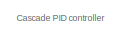
[diagram: root canvas - part 1/4, top left region]
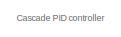
[diagram: root canvas - part 2/4, top center region]
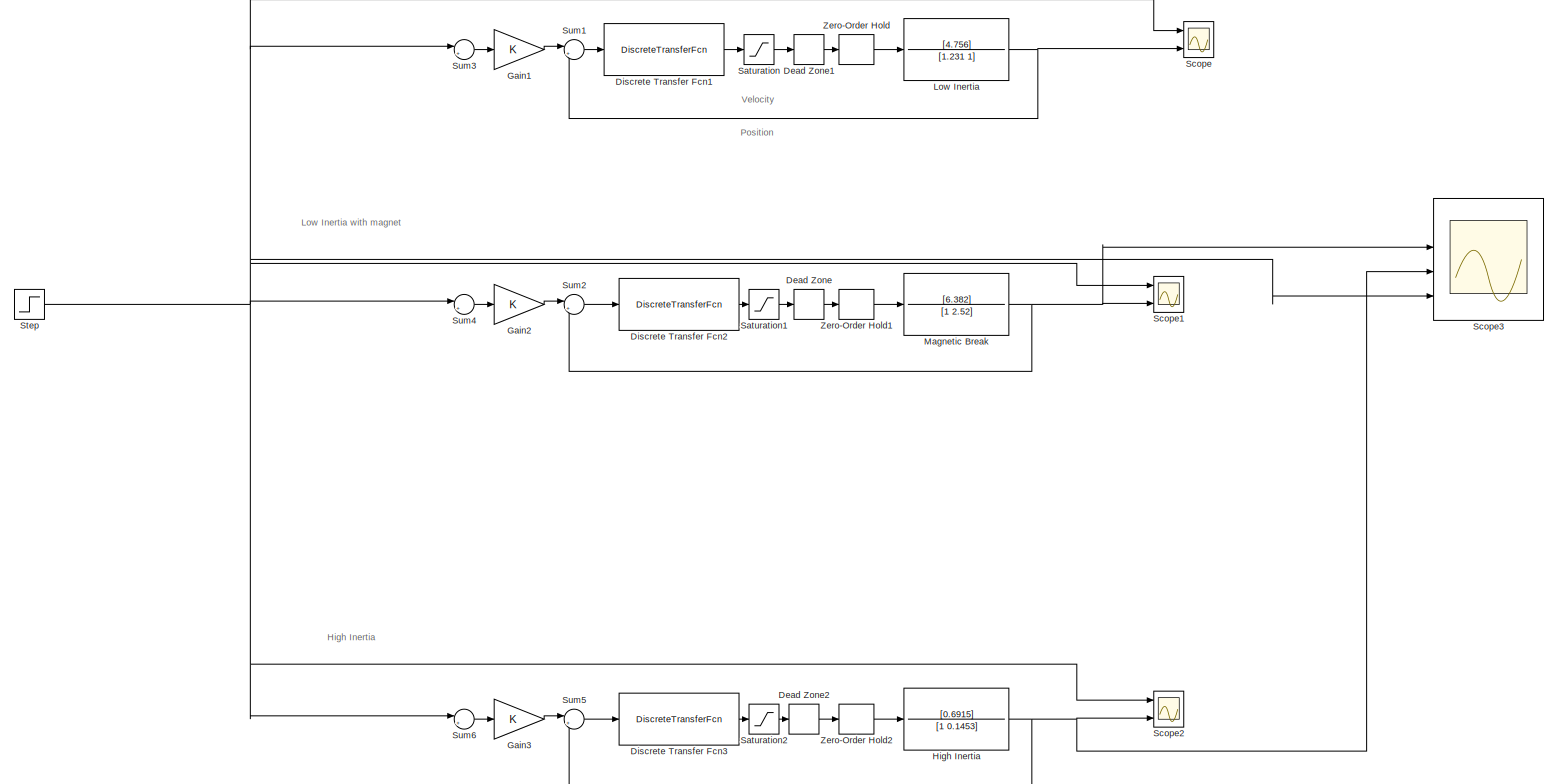
[diagram: root canvas - part 3/4, left side, full height]
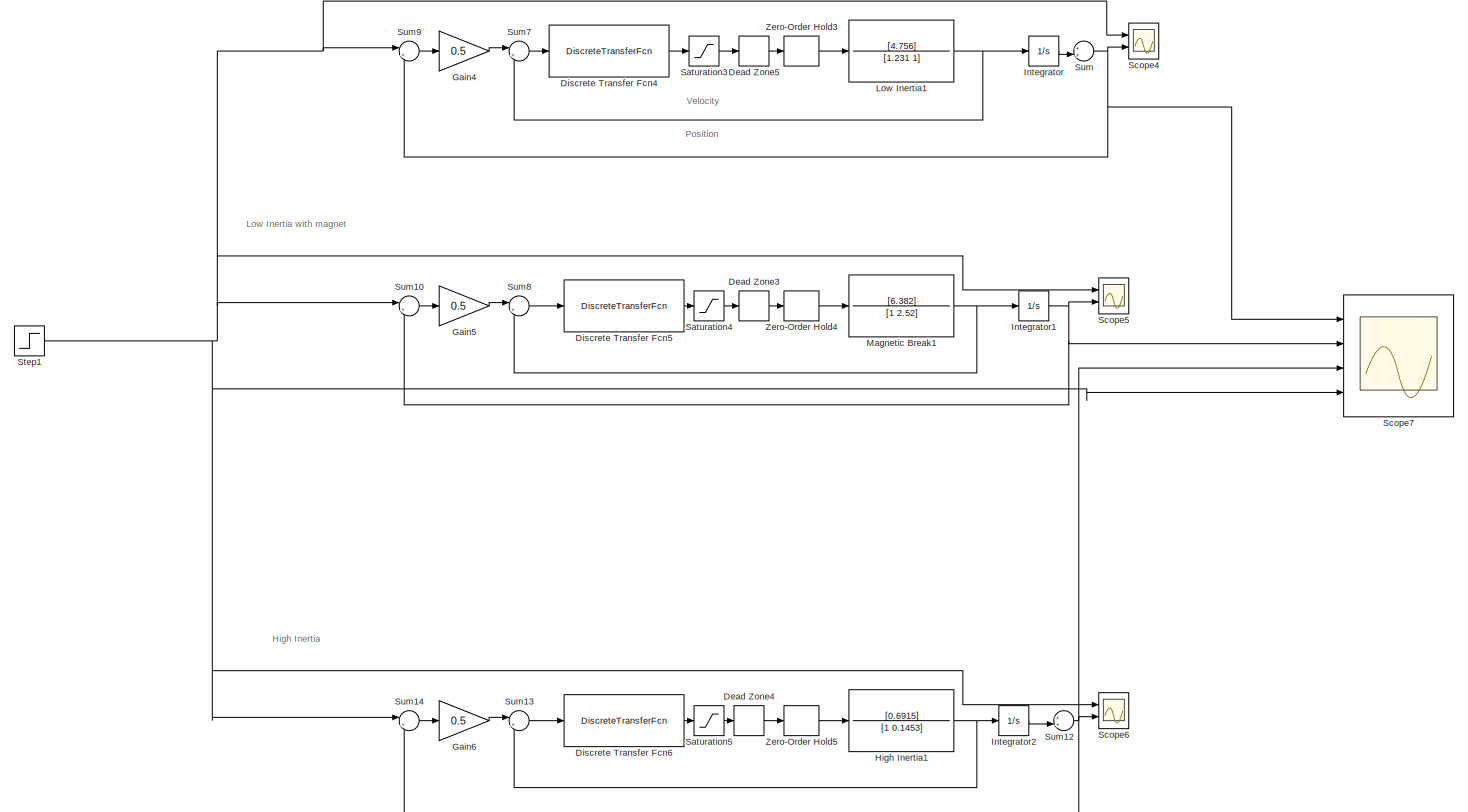
[diagram: root canvas - part 4/4, right side, full height]
MODEL slx_501386869ef5
KIND model
CONFIG AbsTol = auto
CONFIG EnableMultiTasking = off
CONFIG FixedStep = auto
CONFIG MaxStep = auto
CONFIG MinStep = auto
CONFIG RelTol = 1e-3
CONFIG SampleTimeConstraint = Unconstrained
CONFIG SolverName = VariableStepAuto
CONFIG StartTime = 0.0
CONFIG StopTime = 15
BLOCK [DeadZone] Dead Zone
  LowerValue = -1.53
  UpperValue = 0.39
BLOCK [DeadZone] Dead Zone1
  LowerValue = -1.48
  UpperValue = 00.39
BLOCK [DeadZone] Dead Zone2
  LowerValue = -0.49
  UpperValue = 0.43
BLOCK [DeadZone] Dead Zone3
  LowerValue = -1.53
  UpperValue = 0.39
BLOCK [DeadZone] Dead Zone4
  LowerValue = -0.49
  UpperValue = 0.43
BLOCK [DeadZone] Dead Zone5
  LowerValue = -1.48
  UpperValue = 00.39
BLOCK [DiscreteTransferFcn] Discrete Transfer Fcn1
  Denominator = [1 -1]
  InputPortMap = u0
  Numerator = [2.002 -1.438]
  Ports = [1, 1]
  SampleTime = 0.05
BLOCK [DiscreteTransferFcn] Discrete Transfer Fcn2
  Denominator = [1 -1]
  InputPortMap = u0
  Numerator = [2.002 -1.438]
  Ports = [1, 1]
  SampleTime = 0.05
BLOCK [DiscreteTransferFcn] Discrete Transfer Fcn3
  Denominator = [1 -1]
  InputPortMap = u0
  Numerator = [2.002 -1.438]
  Ports = [1, 1]
  SampleTime = 0.05
BLOCK [DiscreteTransferFcn] Discrete Transfer Fcn4
  Denominator = [1 -1]
  InputPortMap = u0
  Numerator = [2.002 -1.438]
  Ports = [1, 1]
  SampleTime = 0.05
BLOCK [DiscreteTransferFcn] Discrete Transfer Fcn5
  Denominator = [1 -1]
  InputPortMap = u0
  Numerator = [2.002 -1.438]
  Ports = [1, 1]
  SampleTime = 0.05
BLOCK [DiscreteTransferFcn] Discrete Transfer Fcn6
  Denominator = [1 -1]
  InputPortMap = u0
  Numerator = [2.002 -1.438]
  Ports = [1, 1]
  SampleTime = 0.05
BLOCK [Gain] Gain1
BLOCK [Gain] Gain2
BLOCK [Gain] Gain3
BLOCK [Gain] Gain4
  Gain = 0.5
BLOCK [Gain] Gain5
  Gain = 0.5
BLOCK [Gain] Gain6
  Gain = 0.5
BLOCK [TransferFcn] High Inertia
  Denominator = [1 0.1453]
  Numerator = [0.6915]
BLOCK [TransferFcn] High Inertia1
  Denominator = [1 0.1453]
  Numerator = [0.6915]
BLOCK [Integrator] Integrator
  Ports = [1, 1]
BLOCK [Integrator] Integrator1
  Ports = [1, 1]
BLOCK [Integrator] Integrator2
  Ports = [1, 1]
BLOCK [TransferFcn] Low Inertia
  Denominator = [1.231 1]
  Numerator = [4.756]
BLOCK [TransferFcn] Low Inertia1
  Denominator = [1.231 1]
  Numerator = [4.756]
BLOCK [TransferFcn] Magnetic Break
  Denominator = [1 2.52]
  Numerator = [6.382]
BLOCK [TransferFcn] Magnetic Break1
  Denominator = [1 2.52]
  Numerator = [6.382]
BLOCK [Saturate] Saturation
  LowerLimit = -10
  UpperLimit = +10
BLOCK [Saturate] Saturation1
  LowerLimit = -10
  UpperLimit = +10
BLOCK [Saturate] Saturation2
  LowerLimit = -10
  UpperLimit = +10
BLOCK [Saturate] Saturation3
  LowerLimit = -10
  UpperLimit = +10
BLOCK [Saturate] Saturation4
  LowerLimit = -10
  UpperLimit = +10
BLOCK [Saturate] Saturation5
  LowerLimit = -10
  UpperLimit = +10
BLOCK [Scope] Scope
  Floating = off
  NumInputPorts = 3
  Ports = [3]
  ScopeSpecificationString = Simulink.scopes.TimeScopeBlockCfg('CurrentConfiguration', extmgr.ConfigurationSet(extmgr.Configuration('Core','General UI',true),extmgr.Configuration('Core','Source UI',true),extmgr.Configuration('Sources','WiredSimulink',true,'DataLoggingVariableName','ScopeData1'),extmgr.Configuration('Visuals','Time Domain',true,'SerializedDisplays',{struct('MinYLimReal','-0.80473','MaxYLimReal','7.24257','YLab...<+1443ch>
BLOCK [Scope] Scope1
  Floating = off
  NumInputPorts = 3
  Ports = [3]
  ScopeSpecificationString = Simulink.scopes.TimeScopeBlockCfg('CurrentConfiguration', extmgr.ConfigurationSet(extmgr.Configuration('Core','General UI',true),extmgr.Configuration('Core','Source UI',true),extmgr.Configuration('Sources','WiredSimulink',true,'DataLoggingVariableName','ScopeData2'),extmgr.Configuration('Visuals','Time Domain',true,'SerializedDisplays',{struct('MinYLimReal','-0.71261','MaxYLimReal','6.41347','YLab...<+1449ch>
BLOCK [Scope] Scope2
  Floating = off
  NumInputPorts = 3
  Ports = [3]
  ScopeSpecificationString = Simulink.scopes.TimeScopeBlockCfg('CurrentConfiguration', extmgr.ConfigurationSet(extmgr.Configuration('Core','General UI',true),extmgr.Configuration('Core','Source UI',true),extmgr.Configuration('Sources','WiredSimulink',true,'DataLoggingVariableName','ScopeData3'),extmgr.Configuration('Visuals','Time Domain',true,'SerializedDisplays',{struct('MinYLimReal','-1.0695','MaxYLimReal','9.62554','YLabe...<+1445ch>
BLOCK [Scope] Scope3
  Floating = off
  NumInputPorts = 4
  Ports = [4]
  ScopeSpecificationString = Simulink.scopes.TimeScopeBlockCfg('CurrentConfiguration', extmgr.ConfigurationSet(extmgr.Configuration('Core','General UI',true),extmgr.Configuration('Core','Source UI',true),extmgr.Configuration('Sources','WiredSimulink',true),extmgr.Configuration('Visuals','Time Domain',true,'SerializedDisplays',{struct('MinYLimReal','-1.0695','MaxYLimReal','9.62554','YLabelReal','','MinYLimMag','0.00000','MaxYL...<+1398ch>
BLOCK [Scope] Scope4
  Floating = off
  NumInputPorts = 2
  Ports = [2]
  ScopeSpecificationString = Simulink.scopes.TimeScopeBlockCfg('CurrentConfiguration', extmgr.ConfigurationSet(extmgr.Configuration('Core','General UI',true),extmgr.Configuration('Core','Source UI',true),extmgr.Configuration('Sources','WiredSimulink',true,'DataLoggingVariableName','ScopeData1'),extmgr.Configuration('Visuals','Time Domain',true,'SerializedDisplays',{struct('MinYLimReal','-0.63524','MaxYLimReal','5.71714','YLab...<+1426ch>
BLOCK [Scope] Scope5
  Floating = off
  NumInputPorts = 2
  Ports = [2]
  ScopeSpecificationString = Simulink.scopes.TimeScopeBlockCfg('CurrentConfiguration', extmgr.ConfigurationSet(extmgr.Configuration('Core','General UI',true),extmgr.Configuration('Core','Source UI',true),extmgr.Configuration('Sources','WiredSimulink',true,'DataLoggingVariableName','ScopeData2'),extmgr.Configuration('Visuals','Time Domain',true,'SerializedDisplays',{struct('MinYLimReal','-0.625','MaxYLimReal','5.625','YLabelRe...<+1423ch>
BLOCK [Scope] Scope6
  Floating = off
  NumInputPorts = 2
  Ports = [2]
  ScopeSpecificationString = Simulink.scopes.TimeScopeBlockCfg('CurrentConfiguration', extmgr.ConfigurationSet(extmgr.Configuration('Core','General UI',true),extmgr.Configuration('Core','Source UI',true),extmgr.Configuration('Sources','WiredSimulink',true,'DataLoggingVariableName','ScopeData3'),extmgr.Configuration('Visuals','Time Domain',true,'SerializedDisplays',{struct('MinYLimReal','-0.63429','MaxYLimReal','5.7086','YLabe...<+1421ch>
BLOCK [Scope] Scope7
  Floating = off
  NumInputPorts = 4
  Ports = [4]
  ScopeSpecificationString = Simulink.scopes.TimeScopeBlockCfg('CurrentConfiguration', extmgr.ConfigurationSet(extmgr.Configuration('Core','General UI',true),extmgr.Configuration('Core','Source UI',true),extmgr.Configuration('Sources','WiredSimulink',true,'DataLoggingVariableName','ScopeData4'),extmgr.Configuration('Visuals','Time Domain',true,'SerializedDisplays',{struct('MinYLimReal','-1.39218','MaxYLimReal','9.50412','YLab...<+1494ch>
BLOCK [Step] Step
  After = 5
  SampleTime = 0
  Time = 0
BLOCK [Step] Step1
  After = 5
  SampleTime = 0
  Time = 0
BLOCK [Sum] Sum
  Inputs = ++|
  Ports = [2, 1]
BLOCK [Sum] Sum1
  Inputs = |+-
  Ports = [2, 1]
BLOCK [Sum] Sum10
  Inputs = |+-
  Ports = [2, 1]
BLOCK [Sum] Sum12
  Inputs = ++|
  Ports = [2, 1]
BLOCK [Sum] Sum13
  Inputs = |+-
  Ports = [2, 1]
BLOCK [Sum] Sum14
  Inputs = |+-
  Ports = [2, 1]
BLOCK [Sum] Sum2
  Inputs = |+-
  Ports = [2, 1]
BLOCK [Sum] Sum3
  Inputs = |+-
  Ports = [2, 1]
BLOCK [Sum] Sum4
  Inputs = |+-
  Ports = [2, 1]
BLOCK [Sum] Sum5
  Inputs = |+-
  Ports = [2, 1]
BLOCK [Sum] Sum6
  Inputs = |+-
  Ports = [2, 1]
BLOCK [Sum] Sum7
  Inputs = |+-
  Ports = [2, 1]
BLOCK [Sum] Sum8
  Inputs = |+-
  Ports = [2, 1]
BLOCK [Sum] Sum9
  Inputs = |+-
  Ports = [2, 1]
BLOCK [ZeroOrderHold] Zero-Order Hold
  SampleTime = 0.05
BLOCK [ZeroOrderHold] Zero-Order Hold1
  SampleTime = 0.05
BLOCK [ZeroOrderHold] Zero-Order Hold2
  SampleTime = 0.02
BLOCK [ZeroOrderHold] Zero-Order Hold3
  SampleTime = 0.05
BLOCK [ZeroOrderHold] Zero-Order Hold4
  SampleTime = 0.05
BLOCK [ZeroOrderHold] Zero-Order Hold5
  SampleTime = 0.02
ANNOTATION (root): Cascade PID controller
ANNOTATION (root): High Inertia
ANNOTATION (root): Low Inertia with magnet
ANNOTATION (root): Position
ANNOTATION (root): Velocity
LINE Dead Zone1:1 -> Zero-Order Hold:1
LINE Dead Zone2:1 -> Zero-Order Hold2:1
LINE Dead Zone3:1 -> Zero-Order Hold4:1
LINE Dead Zone4:1 -> Zero-Order Hold5:1
LINE Dead Zone5:1 -> Zero-Order Hold3:1
LINE Dead Zone:1 -> Zero-Order Hold1:1
LINE Discrete Transfer Fcn1:1 -> Saturation:1
LINE Discrete Transfer Fcn2:1 -> Saturation1:1
LINE Discrete Transfer Fcn3:1 -> Saturation2:1
LINE Discrete Transfer Fcn4:1 -> Saturation3:1
LINE Discrete Transfer Fcn5:1 -> Saturation4:1
LINE Discrete Transfer Fcn6:1 -> Saturation5:1
LINE Gain1:1 -> Sum1:1
LINE Gain2:1 -> Sum2:1
LINE Gain3:1 -> Sum5:1
LINE Gain4:1 -> Sum7:1
LINE Gain5:1 -> Sum8:1
LINE Gain6:1 -> Sum13:1
NET High Inertia1:1 -> Integrator2:1, Sum13:2
NET High Inertia:1 -> Scope2:3, Scope3:3, Sum5:2
NET Integrator1:1 -> Scope5:2, Scope7:2, Sum10:2
LINE Integrator2:1 -> Sum12:2
LINE Integrator:1 -> Sum:2
NET Low Inertia1:1 -> Integrator:1, Sum7:2
NET Low Inertia:1 -> Scope:3, Sum1:2
NET Magnetic Break1:1 -> Integrator1:1, Sum8:2
NET Magnetic Break:1 -> Scope1:3, Scope3:2, Sum2:2
LINE Saturation1:1 -> Dead Zone:1
LINE Saturation2:1 -> Dead Zone2:1
LINE Saturation3:1 -> Dead Zone5:1
LINE Saturation4:1 -> Dead Zone3:1
LINE Saturation5:1 -> Dead Zone4:1
LINE Saturation:1 -> Dead Zone1:1
NET Step1:1 -> Scope4:1, Scope5:1, Scope6:1, Scope7:4, Sum10:1, Sum14:1, Sum9:1
NET Step:1 -> Scope1:1, Scope2:1, Scope3:4, Scope:1, Sum3:1, Sum4:1, Sum6:1
LINE Sum10:1 -> Gain5:1
NET Sum12:1 -> Scope6:2, Scope7:3, Sum14:2
LINE Sum13:1 -> Discrete Transfer Fcn6:1
LINE Sum14:1 -> Gain6:1
LINE Sum1:1 -> Discrete Transfer Fcn1:1
LINE Sum2:1 -> Discrete Transfer Fcn2:1
LINE Sum3:1 -> Gain1:1
LINE Sum4:1 -> Gain2:1
LINE Sum5:1 -> Discrete Transfer Fcn3:1
LINE Sum6:1 -> Gain3:1
LINE Sum7:1 -> Discrete Transfer Fcn4:1
LINE Sum8:1 -> Discrete Transfer Fcn5:1
LINE Sum9:1 -> Gain4:1
NET Sum:1 -> Scope4:2, Scope7:1, Sum9:2
LINE Zero-Order Hold1:1 -> Magnetic Break:1
LINE Zero-Order Hold2:1 -> High Inertia:1
LINE Zero-Order Hold3:1 -> Low Inertia1:1
LINE Zero-Order Hold4:1 -> Magnetic Break1:1
LINE Zero-Order Hold5:1 -> High Inertia1:1
LINE Zero-Order Hold:1 -> Low Inertia:1
note: NET lines group one-source signal fan-out (src -> all destinations, sorted); 1:1 wires keep LINE
